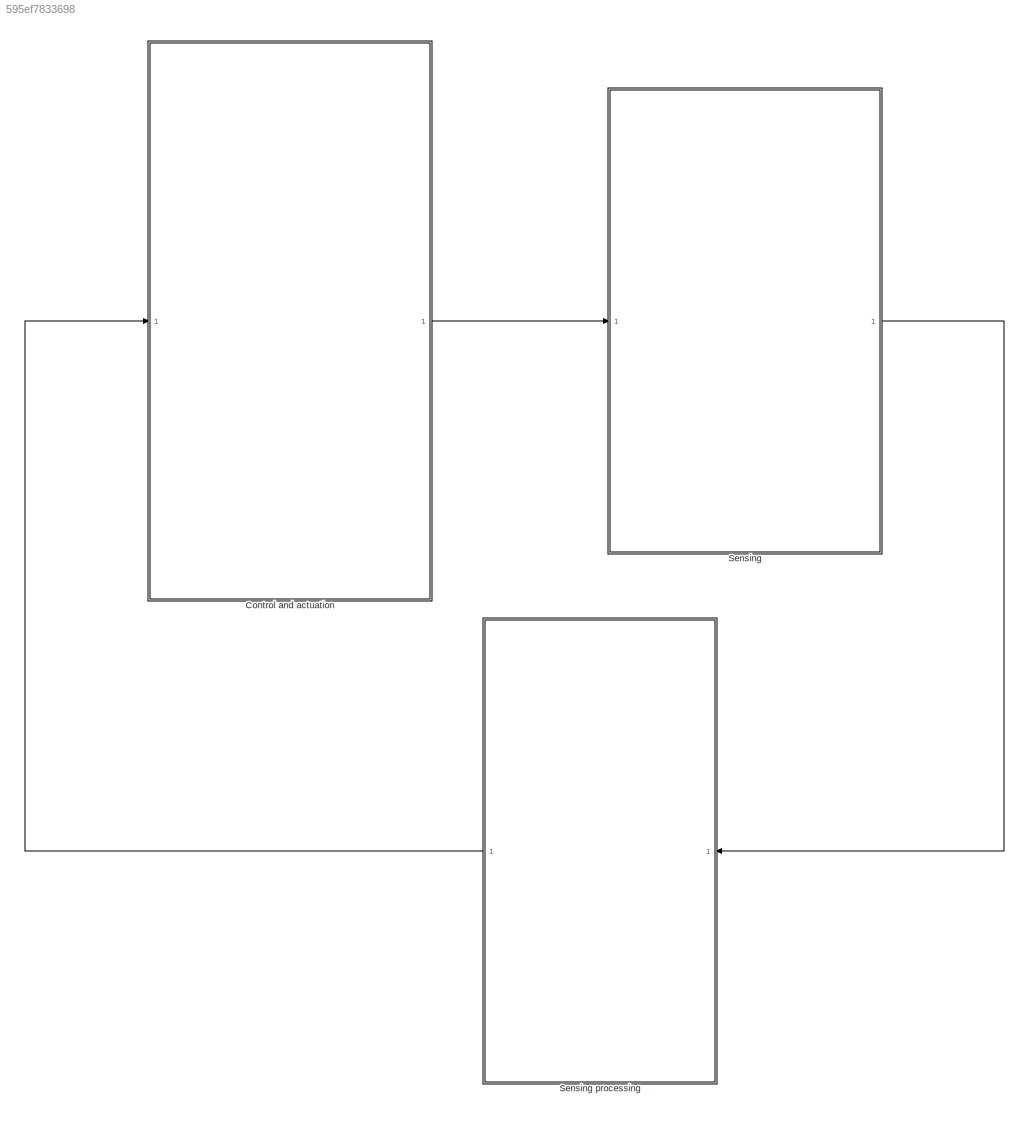
MODEL slx_595ef7833698
KIND model
CONFIG AbsTol = auto
CONFIG EnableMultiTasking = off
CONFIG FixedStep = auto
CONFIG MaxStep = auto
CONFIG MinStep = auto
CONFIG RelTol = 1e-3
CONFIG SampleTimeConstraint = Unconstrained
CONFIG SolverName = VariableStepAuto
CONFIG StartTime = 0.0
CONFIG StopTime = 10.0
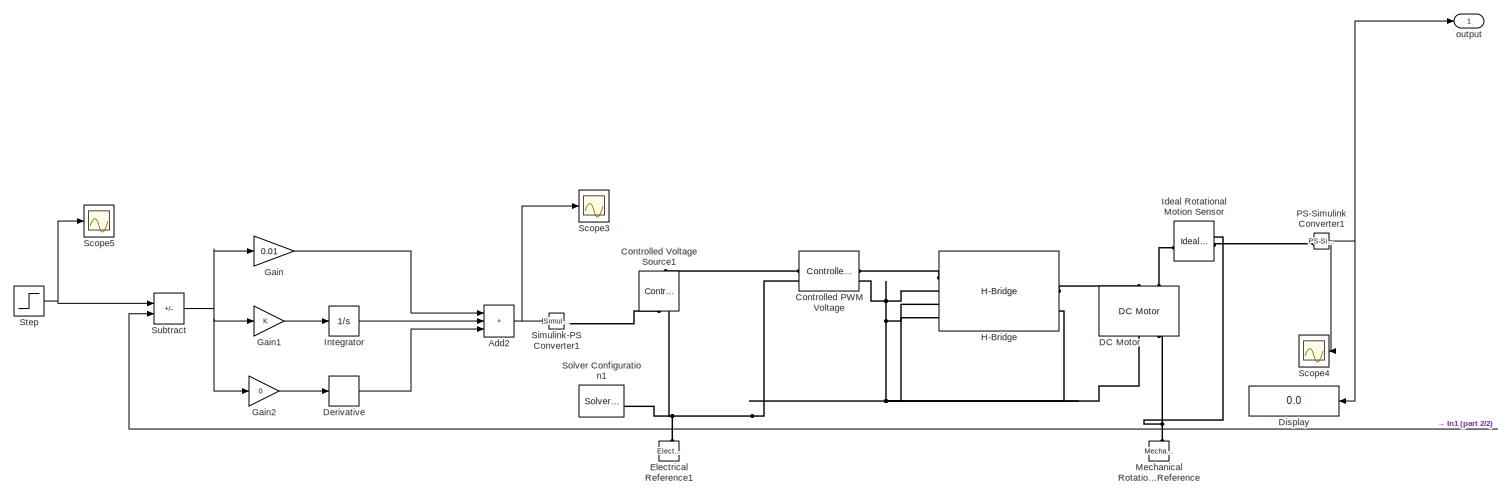
[diagram: Control and actuation  - part 1/2, left side, full height]
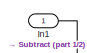
[diagram: Control and actuation  - part 2/2, bottom right region]
BLOCK [SubSystem] Control and actuation 
BLOCK [Sum] Control and actuation /Add2
  IconShape = rectangular
  Inputs = +++
BLOCK [Reference] Control and actuation /Controlled PWM Voltage  REF=ee_lib/Integrated Circuits/Controlled PWM
Voltage
  SourceBlock = ee_lib/Integrated Circuits/Controlled PWM\nVoltage
  SourceType = Controlled PWM\nVoltage
BLOCK [Reference] Control and actuation /Controlled Voltage Source1  REF=fl_lib/Electrical/Electrical Sources/Controlled Voltage
Source
  NameLocation = right
  SourceBlock = fl_lib/Electrical/Electrical Sources/Controlled Voltage\nSource
  SourceType = Controlled Voltage\nSource
BLOCK [Reference] Control and actuation /DC Motor  REF=ee_lib/Electromechanical/Brushed Motors/DC Motor
  NameLocation = right
  SourceBlock = ee_lib/Electromechanical/Brushed Motors/DC Motor
  SourceType = DC Motor
BLOCK [Derivative] Control and actuation /Derivative
BLOCK [Display] Control and actuation /Display
  Decimation = 1
  NameLocation = top
BLOCK [Reference] Control and actuation /Electrical Reference1  REF=fl_lib/Electrical/Electrical Elements/Electrical Reference
  NameLocation = right
  SourceBlock = fl_lib/Electrical/Electrical Elements/Electrical Reference
  SourceType = Electrical Reference
BLOCK [Gain] Control and actuation /Gain
  Gain = 0.01
BLOCK [Gain] Control and actuation /Gain1
BLOCK [Gain] Control and actuation /Gain2
  Gain = 0
BLOCK [Reference] Control and actuation /H-Bridge  REF=ee_lib/Semiconductors &
Converters/Converters/H-Bridge
  SourceBlock = ee_lib/Semiconductors &\nConverters/Converters/H-Bridge
  SourceType = H-Bridge
BLOCK [Reference] Control and actuation /Ideal Rotational Motion Sensor  REF=fl_lib/Mechanical/Mechanical Sensors/Ideal Rotational
Motion Sensor
  SourceBlock = fl_lib/Mechanical/Mechanical Sensors/Ideal Rotational\nMotion Sensor
  SourceType = Ideal Rotational\nMotion Sensor
BLOCK [Inport] Control and actuation /In1
BLOCK [Integrator] Control and actuation /Integrator
BLOCK [Reference] Control and actuation /Mechanical Rotational Reference  REF=fl_lib/Mechanical/Rotational Elements/Mechanical
Rotational Reference
  NameLocation = right
  SourceBlock = fl_lib/Mechanical/Rotational Elements/Mechanical\nRotational Reference
  SourceType = Mechanical\nRotational Reference
BLOCK [Reference] Control and actuation /PS-Simulink Converter1  REF=nesl_utility/PS-Simulink
Converter
  SourceBlock = nesl_utility/PS-Simulink\nConverter
  SourceType = PS-Simulink\nConverter
BLOCK [Scope] Control and actuation /Scope3
  Floating = off
  NumInputPorts = 1
  ScopeSpecificationString = Simulink.scopes.TimeScopeBlockCfg('CurrentConfiguration', extmgr.ConfigurationSet(extmgr.Configuration('Core','General UI',true),extmgr.Configuration('Core','Source UI',true),extmgr.Configuration('Sources','WiredSimulink',true,'DataLoggingVariableName','ScopeData1'),extmgr.Configuration('Visuals','Time Domain',true,'SerializedDisplays',{struct('MinYLimReal','-1.18196','MaxYLimReal','10.58677','YLa...<+1367ch>
BLOCK [Scope] Control and actuation /Scope4
  Floating = off
  NameLocation = top
  NumInputPorts = 1
  ScopeSpecificationString = Simulink.scopes.TimeScopeBlockCfg('CurrentConfiguration', extmgr.ConfigurationSet(extmgr.Configuration('Core','General UI',true),extmgr.Configuration('Core','Source UI',true),extmgr.Configuration('Sources','WiredSimulink',true,'DataLoggingVariableName','ScopeData2'),extmgr.Configuration('Visuals','Time Domain',true,'SerializedDisplays',{struct('MinYLimReal','-32.72492','MaxYLimReal','294.52431','Y...<+1391ch>
BLOCK [Scope] Control and actuation /Scope5
  Floating = off
  NumInputPorts = 1
  ScopeSpecificationString = Simulink.scopes.TimeScopeBlockCfg('CurrentConfiguration', extmgr.ConfigurationSet(extmgr.Configuration('Core','General UI',true),extmgr.Configuration('Core','Source UI',true),extmgr.Configuration('Sources','WiredSimulink',true,'DataLoggingVariableName','ScopeData3'),extmgr.Configuration('Visuals','Time Domain',true,'SerializedDisplays',{struct('MinYLimReal','-0.125','MaxYLimReal','1.125','YLabelRe...<+1382ch>
BLOCK [Reference] Control and actuation /Simulink-PS Converter1  REF=nesl_utility/Simulink-PS
Converter
  SourceBlock = nesl_utility/Simulink-PS\nConverter
  SourceType = Simulink-PS\nConverter
BLOCK [Reference] Control and actuation /Solver Configuration1  REF=nesl_utility/Solver
Configuration
  SourceBlock = nesl_utility/Solver\nConfiguration
  SourceType = Solver\nConfiguration
BLOCK [Step] Control and actuation /Step
  SampleTime = 0
BLOCK [Sum] Control and actuation /Subtract
  IconShape = rectangular
  Inputs = +-
BLOCK [Outport] Control and actuation /output
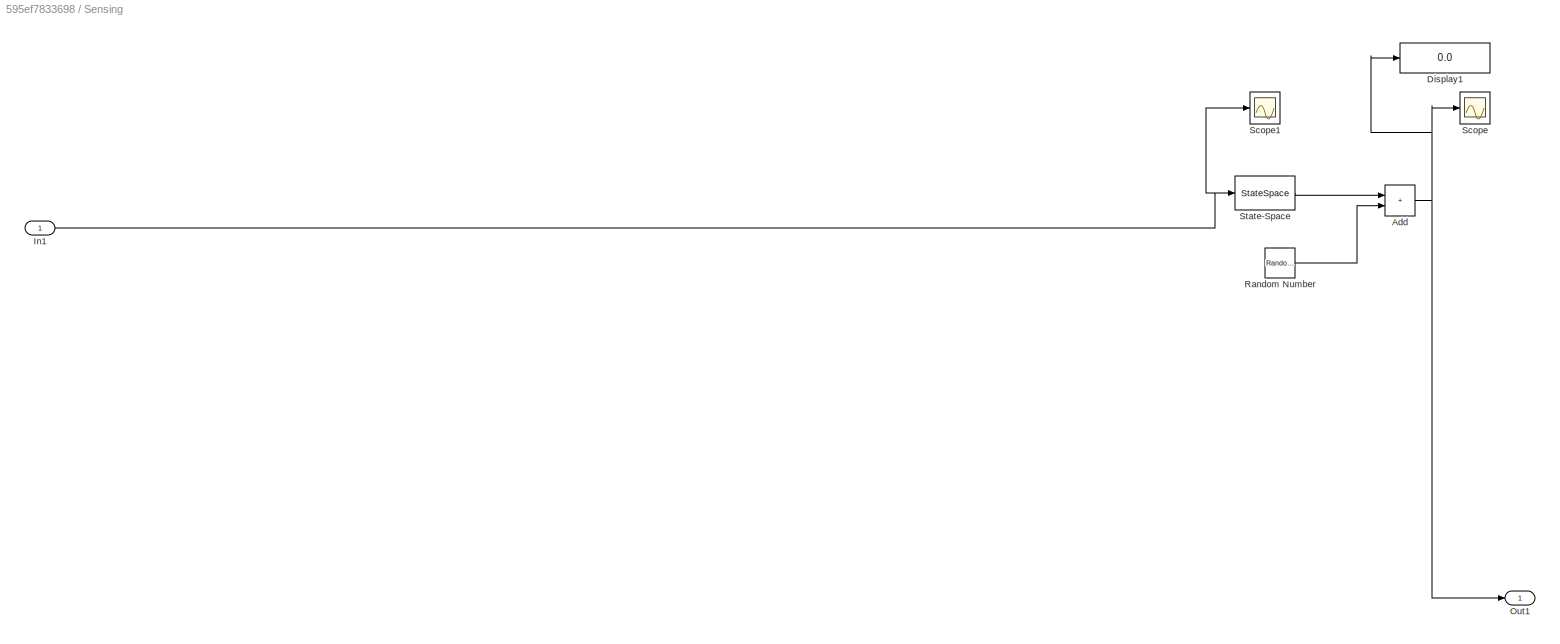
BLOCK [SubSystem] Sensing
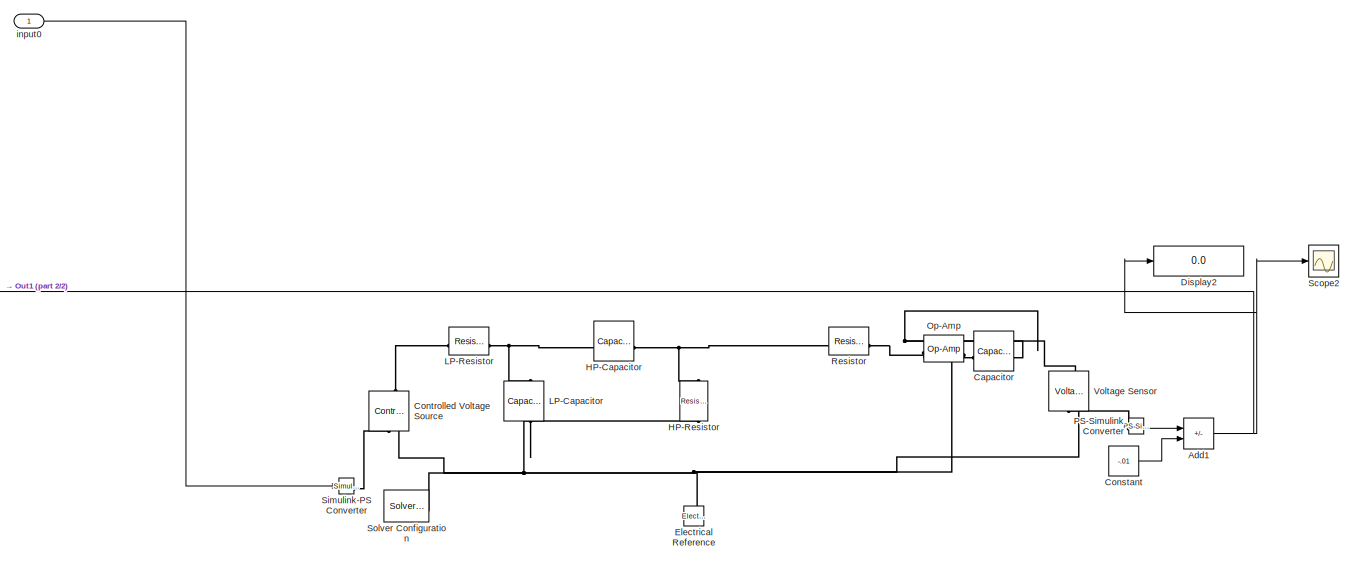
[diagram: Sensing processing - part 1/2, right side, full height]
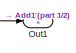
[diagram: Sensing processing - part 2/2, middle left region]
BLOCK [SubSystem] Sensing processing
  NameLocation = top
BLOCK [Sum] Sensing processing/Add1
  IconShape = rectangular
  Inputs = +-
BLOCK [Reference] Sensing processing/Capacitor  REF=fl_lib/Electrical/Electrical Elements/Capacitor
  SourceBlock = fl_lib/Electrical/Electrical Elements/Capacitor
  SourceType = Capacitor
BLOCK [Constant] Sensing processing/Constant
  Value = -.01
BLOCK [Reference] Sensing processing/Controlled Voltage Source  REF=fl_lib/Electrical/Electrical Sources/Controlled Voltage
Source
  NameLocation = right
  SourceBlock = fl_lib/Electrical/Electrical Sources/Controlled Voltage\nSource
  SourceType = Controlled Voltage\nSource
BLOCK [Display] Sensing processing/Display2
  Decimation = 1
BLOCK [Reference] Sensing processing/Electrical Reference  REF=fl_lib/Electrical/Electrical Elements/Electrical Reference
  NameLocation = right
  SourceBlock = fl_lib/Electrical/Electrical Elements/Electrical Reference
  SourceType = Electrical Reference
BLOCK [Reference] Sensing processing/HP-Capacitor  REF=fl_lib/Electrical/Electrical Elements/Capacitor
  SourceBlock = fl_lib/Electrical/Electrical Elements/Capacitor
  SourceType = Capacitor
BLOCK [Reference] Sensing processing/HP-Resistor  REF=fl_lib/Electrical/Electrical Elements/Resistor
  NameLocation = left
  SourceBlock = fl_lib/Electrical/Electrical Elements/Resistor
  SourceType = Resistor
BLOCK [Reference] Sensing processing/LP-Capacitor  REF=fl_lib/Electrical/Electrical Elements/Capacitor
  NameLocation = left
  SourceBlock = fl_lib/Electrical/Electrical Elements/Capacitor
  SourceType = Capacitor
BLOCK [Reference] Sensing processing/LP-Resistor  REF=fl_lib/Electrical/Electrical Elements/Resistor
  SourceBlock = fl_lib/Electrical/Electrical Elements/Resistor
  SourceType = Resistor
BLOCK [Reference] Sensing processing/Op-Amp  REF=fl_lib/Electrical/Electrical Elements/Op-Amp
  SourceBlock = fl_lib/Electrical/Electrical Elements/Op-Amp
  SourceType = Op-Amp
BLOCK [Outport] Sensing processing/Out1
BLOCK [Reference] Sensing processing/PS-Simulink Converter  REF=nesl_utility/PS-Simulink
Converter
  SourceBlock = nesl_utility/PS-Simulink\nConverter
  SourceType = PS-Simulink\nConverter
BLOCK [Reference] Sensing processing/Resistor  REF=fl_lib/Electrical/Electrical Elements/Resistor
  SourceBlock = fl_lib/Electrical/Electrical Elements/Resistor
  SourceType = Resistor
BLOCK [Scope] Sensing processing/Scope2
  Floating = off
  NumInputPorts = 1
  ScopeSpecificationString = Simulink.scopes.TimeScopeBlockCfg('CurrentConfiguration', extmgr.ConfigurationSet(extmgr.Configuration('Core','General UI',true),extmgr.Configuration('Core','Source UI',true),extmgr.Configuration('Sources','WiredSimulink',true,'DataLoggingVariableName','ScopeData3'),extmgr.Configuration('Visuals','Time Domain',true,'SerializedDisplays',{struct('MinYLimReal','0.009','MaxYLimReal','0.011','YLabelRea...<+1345ch>
BLOCK [Reference] Sensing processing/Simulink-PS Converter  REF=nesl_utility/Simulink-PS
Converter
  SourceBlock = nesl_utility/Simulink-PS\nConverter
  SourceType = Simulink-PS\nConverter
BLOCK [Reference] Sensing processing/Solver Configuration  REF=nesl_utility/Solver
Configuration
  SourceBlock = nesl_utility/Solver\nConfiguration
  SourceType = Solver\nConfiguration
BLOCK [Reference] Sensing processing/Voltage Sensor  REF=fl_lib/Electrical/Electrical Sensors/Voltage Sensor
  NameLocation = right
  SourceBlock = fl_lib/Electrical/Electrical Sensors/Voltage Sensor
  SourceType = Voltage Sensor
BLOCK [Inport] Sensing processing/input0
BLOCK [Sum] Sensing/Add
  IconShape = rectangular
BLOCK [Display] Sensing/Display1
  Decimation = 1
BLOCK [Inport] Sensing/In1
BLOCK [Outport] Sensing/Out1
BLOCK [RandomNumber] Sensing/Random Number
  Mean = 0.01
  SampleTime = 5
  Variance = 0.0025
BLOCK [Scope] Sensing/Scope
  Floating = off
  NumInputPorts = 1
  ScopeSpecificationString = Simulink.scopes.TimeScopeBlockCfg('CurrentConfiguration', extmgr.ConfigurationSet(extmgr.Configuration('Core','General UI',true),extmgr.Configuration('Core','Source UI',true),extmgr.Configuration('Sources','WiredSimulink',true),extmgr.Configuration('Visuals','Time Domain',true,'SerializedDisplays',{struct('MinYLimReal','-327.18099','MaxYLimReal','2945.31135','YLabelReal','','MinYLimMag',' 0.00000'...<+1341ch>
BLOCK [Scope] Sensing/Scope1
  Floating = off
  NumInputPorts = 1
  ScopeSpecificationString = Simulink.scopes.TimeScopeBlockCfg('CurrentConfiguration', extmgr.ConfigurationSet(extmgr.Configuration('Core','General UI',true),extmgr.Configuration('Core','Source UI',true),extmgr.Configuration('Sources','WiredSimulink',true,'DataLoggingVariableName','ScopeData1'),extmgr.Configuration('Visuals','Time Domain',true,'SerializedDisplays',{struct('MinYLimReal','-32.72492','MaxYLimReal','294.52431','Y...<+1391ch>
BLOCK [StateSpace] Sensing/State-Space
  A = -5
  B = 50
  D = 0
  InitialCondition = 0
  ParameterTunability = Unconstrained
NET Control and actuation /Add2:1 -> Control and actuation /Scope3:1, Control and actuation /Simulink-PS Converter1:1
LINE Control and actuation /Derivative:1 -> Control and actuation /Add2:3
LINE Control and actuation /Gain1:1 -> Control and actuation /Integrator:1
LINE Control and actuation /Gain2:1 -> Control and actuation /Derivative:1
LINE Control and actuation /Gain:1 -> Control and actuation /Add2:1
LINE Control and actuation /In1:1 -> Control and actuation /Subtract:2
LINE Control and actuation /Integrator:1 -> Control and actuation /Add2:2
NET Control and actuation /PS-Simulink Converter1:1 -> Control and actuation /Display:1, Control and actuation /Scope4:1, Control and actuation /output:1
NET Control and actuation /Step:1 -> Control and actuation /Scope5:1, Control and actuation /Subtract:1
NET Control and actuation /Subtract:1 -> Control and actuation /Gain1:1, Control and actuation /Gain2:1, Control and actuation /Gain:1
LINE Control and actuation :1 -> Sensing:1
NET Sensing processing/Add1:1 -> Sensing processing/Display2:1, Sensing processing/Out1:1, Sensing processing/Scope2:1
LINE Sensing processing/Constant:1 -> Sensing processing/Add1:2
LINE Sensing processing/PS-Simulink Converter:1 -> Sensing processing/Add1:1
LINE Sensing processing/input0:1 -> Sensing processing/Simulink-PS Converter:1
LINE Sensing processing:1 -> Control and actuation :1
NET Sensing/Add:1 -> Sensing/Display1:1, Sensing/Out1:1, Sensing/Scope:1
NET Sensing/In1:1 -> Sensing/Scope1:1, Sensing/State-Space:1
LINE Sensing/Random Number:1 -> Sensing/Add:2
LINE Sensing/State-Space:1 -> Sensing/Add:1
LINE Sensing:1 -> Sensing processing:1
PLINE Control and actuation /Controlled PWM Voltage:LConn1 -- Control and actuation /Controlled Voltage Source1:LConn1
PNET net1: Control and actuation /Controlled PWM Voltage:LConn2 -- Control and actuation /Controlled PWM Voltage:RConn2 -- Control and actuation /Controlled Voltage Source1:RConn2 -- Control and actuation /DC Motor:RConn1 -- Control and actuation /Electrical Reference1:LConn1 -- Control and actuation /H-Bridge:LConn2 -- Control and actuation /H-Bridge:LConn3 -- Control and actuation /H-Bridge:LConn4 -- Control and actuation /H-Bridge:RConn2 -- Control and actuation /Solver Configuration1:RConn1
PLINE Control and actuation /Controlled PWM Voltage:RConn1 -- Control and actuation /H-Bridge:LConn1
PLINE Control and actuation /Controlled Voltage Source1:RConn1 -- Control and actuation /Simulink-PS Converter1:RConn1
PLINE Control and actuation /DC Motor:LConn1 -- Control and actuation /H-Bridge:RConn1
PLINE Control and actuation /DC Motor:LConn2 -- Control and actuation /Ideal Rotational Motion Sensor:LConn1
PNET net2: Control and actuation /DC Motor:RConn2 -- Control and actuation /Ideal Rotational Motion Sensor:RConn1 -- Control and actuation /Mechanical Rotational Reference:LConn1
PLINE Control and actuation /Ideal Rotational Motion Sensor:RConn2 -- Control and actuation /PS-Simulink Converter1:LConn1
PLINE Sensing processing/Capacitor:LConn1 -- Sensing processing/Op-Amp:RConn1
PNET net3: Sensing processing/Capacitor:RConn1 -- Sensing processing/Op-Amp:LConn2 -- Sensing processing/Resistor:RConn1 -- Sensing processing/Voltage Sensor:LConn1
PLINE Sensing processing/Controlled Voltage Source:LConn1 -- Sensing processing/LP-Resistor:LConn1
PLINE Sensing processing/Controlled Voltage Source:RConn1 -- Sensing processing/Simulink-PS Converter:RConn1
PNET net4: Sensing processing/Controlled Voltage Source:RConn2 -- Sensing processing/Electrical Reference:LConn1 -- Sensing processing/HP-Resistor:RConn1 -- Sensing processing/LP-Capacitor:RConn1 -- Sensing processing/Op-Amp:LConn1 -- Sensing processing/Solver Configuration:RConn1 -- Sensing processing/Voltage Sensor:RConn2
PNET net5: Sensing processing/HP-Capacitor:LConn1 -- Sensing processing/LP-Capacitor:LConn1 -- Sensing processing/LP-Resistor:RConn1
PNET net6: Sensing processing/HP-Capacitor:RConn1 -- Sensing processing/HP-Resistor:LConn1 -- Sensing processing/Resistor:LConn1
PLINE Sensing processing/PS-Simulink Converter:LConn1 -- Sensing processing/Voltage Sensor:RConn1
note: NET lines group one-source signal fan-out (src -> all destinations, sorted); 1:1 wires keep LINE; PNET lines group multi-terminal physical nets as a canonical sorted terminal list (undirected conserving connections); 2-terminal nets keep the pairwise PLINE form
